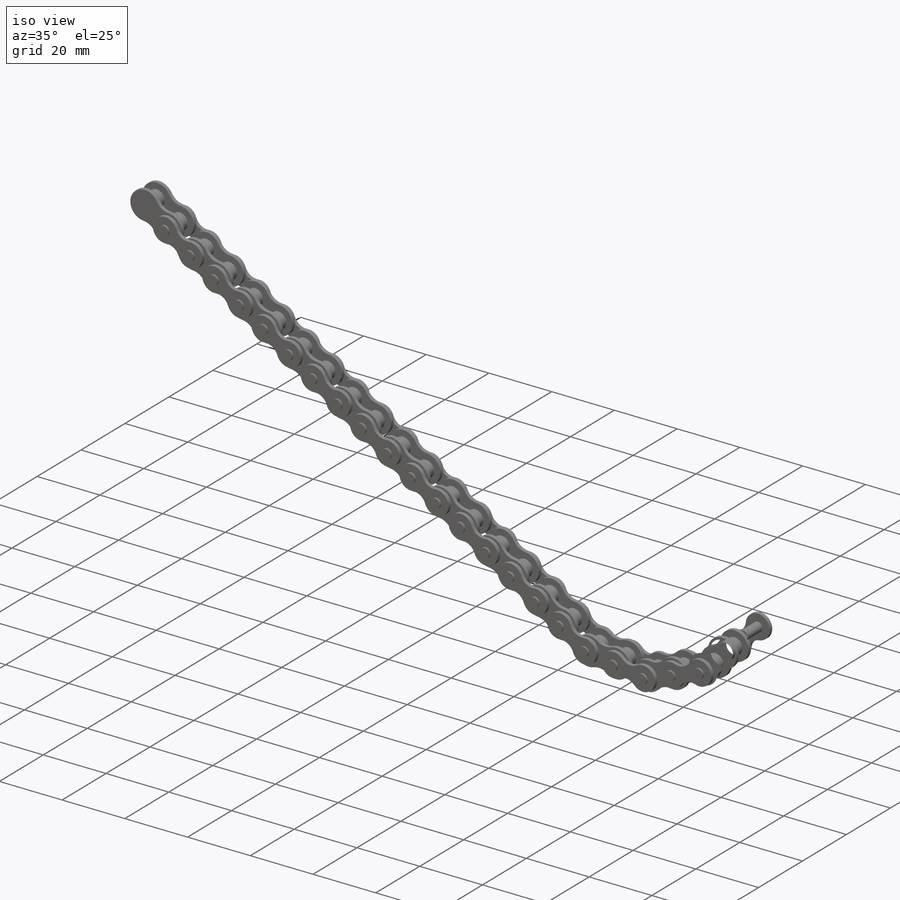
[diagram: iso view]
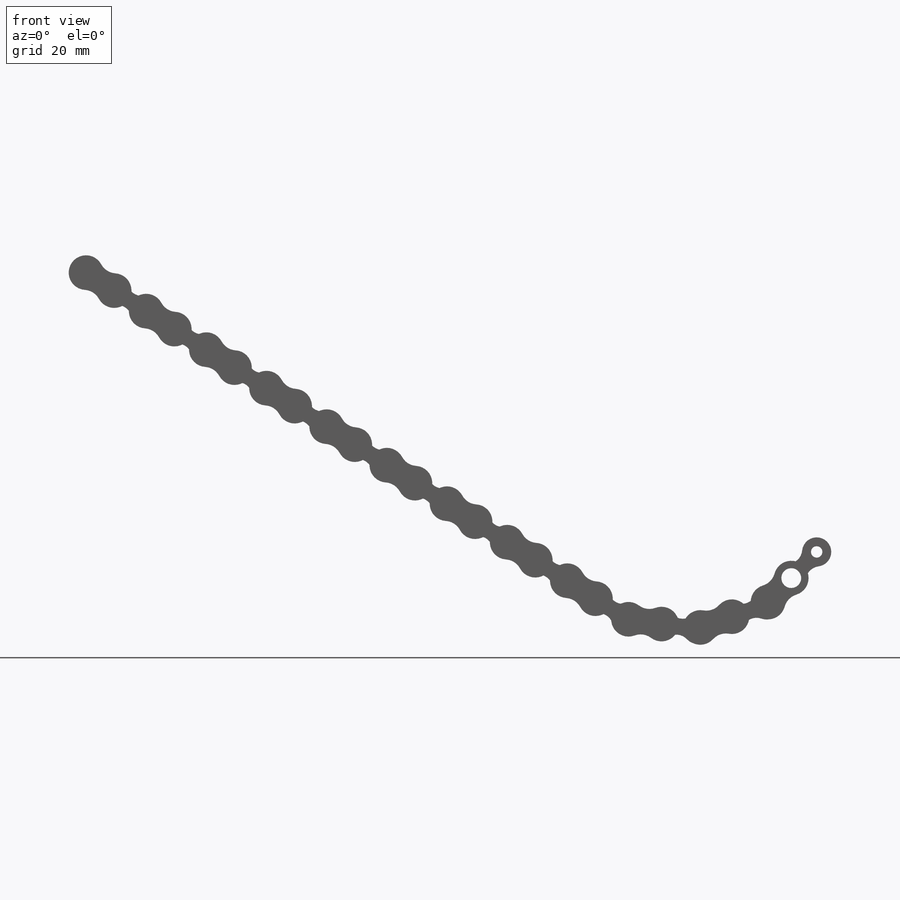
[diagram: front view]
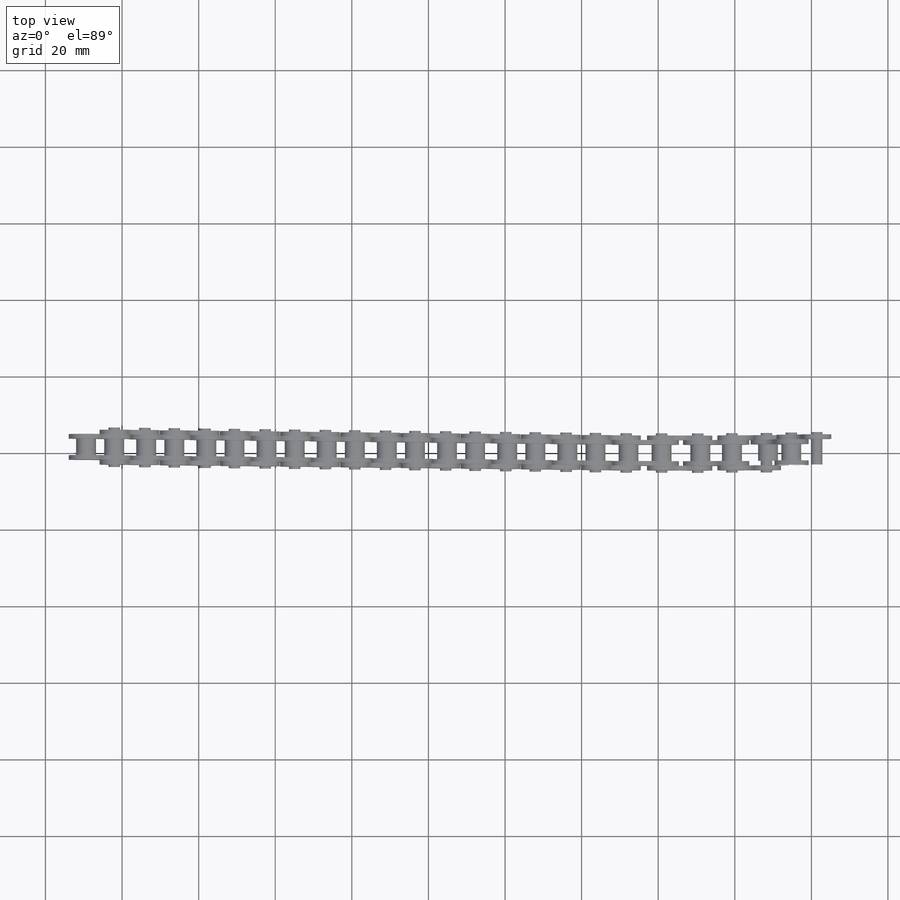
[diagram: top view]
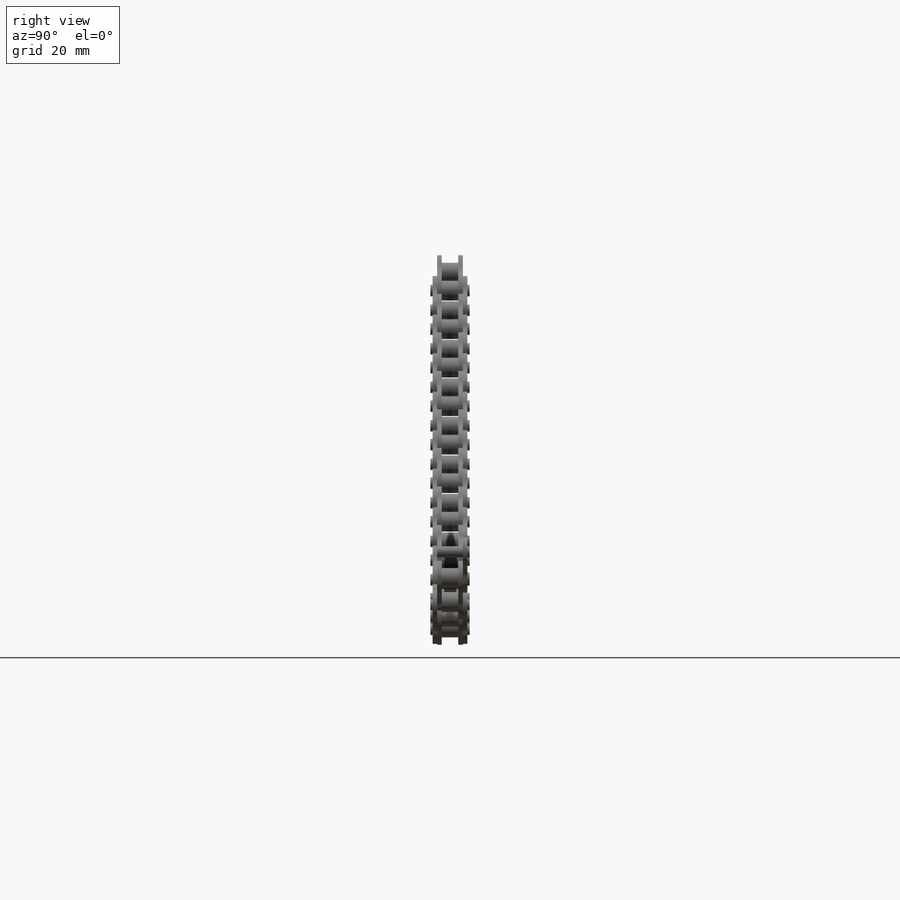
[diagram: right view]
SOLIDWORKS PART (.sldprt)
format: sldprt  version: not decoded by parser v0  size: 1,345,024 bytes
history: native  units: mm
features: sketch x7, extrude x7, pattern_linear x2, material x1, mirror x1, fillet x1 (+11 scaffold rows collapsed)
feature tree (30):
  scaffold x11  (default folders/planes/origin — collapsed)
  material  "AISI 4130 Steel, annealed at 865C"
  sketch  "Sketch4"  dims[D1=5.1816mm D2=~2.97688mm]
  extrude  "Extrude2"  Depth=4.318mm
  sketch  "Sketch3"  dims[c1.D1=~4.524375mm c1.D2=~99.930356mm c1.D3=~101.773656mm c1.D4=~102.806454mm c1.D5=~103.616956mm c1.D6=~105.682552mm c1.D7=~106.493054mm c1.D8=~107.525852mm c1.D9=~109.369153mm c2.D2=~99.930356mm c2.D3=~101.773656mm c2.D4=~102.806454mm c2.D5=~71.468057mm c2.D6=~74.960625mm c2.D7=~75.59991mm c2.D8=~78.453192mm c2.D9=~79.731764mm c2.D10=~82.585046mm c2.D11=~83.224332mm c2.D12=~86.716899mm c3.D5=~71.468057mm c3.D2=8.725mm]
  extrude  "Extrude1"  Depth=1.190625mm
  pattern_linear  "LPattern1"  Count1=2 Count2=1 Spacing1=8.7249mm Spacing2=50mm
  sketch  "Sketch6"  dims[c1.D1=3.81mm c1.D2=~29.320172mm c1.D3=~31.565589mm c1.D4=~31.832461mm c1.D5=~33.811005mm c1.D6=~34.344749mm c1.D7=~36.323293mm c1.D8=~36.590165mm c1.D9=~38.835581mm c2.D2=~29.320172mm c2.D3=~31.565589mm c2.D4=~31.832461mm c2.D5=~19.236035mm c2.D6=~22.100386mm c2.D7=~22.314055mm c2.D8=~24.964737mm c2.D9=~25.392075mm c2.D10=~28.042757mm c2.D11=~28.256426mm c2.D12=~31.120777mm c3.D5=~19.236035mm c3.D2=9.525mm]
  extrude  "Extrude4"  Depth=1.19126mm
  sketch  "Sketch7"  dims[D1=~2.97688mm]
  extrude  "Extrude5"  Depth=10.27684mm
  mirror  "Mirror2"
  sketch  "Sketch8"  dims[c1.D1=3.429mm c1.D3=1.27mm c1.D4=1.27mm c1.D5=3.429mm c1.D6=1.27mm c1.D10=2.8956mm c1.D2=9.525mm c2.D5=~1.869749mm c3.D5=60.0deg c3.D6=~5.567648mm c4.D6=~25.699041deg c4.D7=1.27mm c5.D7=~53.130102deg c5.D8=1.27mm c5.D9=1.27mm c5.D11=2.54mm]
  extrude  "Extrude6"  Depth=0.762mm
  sketch  "Sketch9"  dims[D1=2.54mm]
  extrude  "Extrude7"  Depth=1.0414mm
  sketch  "Sketch10"  dims[D1=3.7084mm]
  extrude  "Extrude8"  Depth=1.0414mm
  fillet  "Fillet1"  Radius=0.127mm
  pattern_linear  "LPattern2"  Count1=2 Count2=1 Spacing1=9.652mm Spacing2=50mm
decode coverage: 17 of 18 modeling features carry decoded parameters
note: ~ marks probable driven/reference dimensions
note: suppression state not decoded; provenance and decode notes live in map.json
